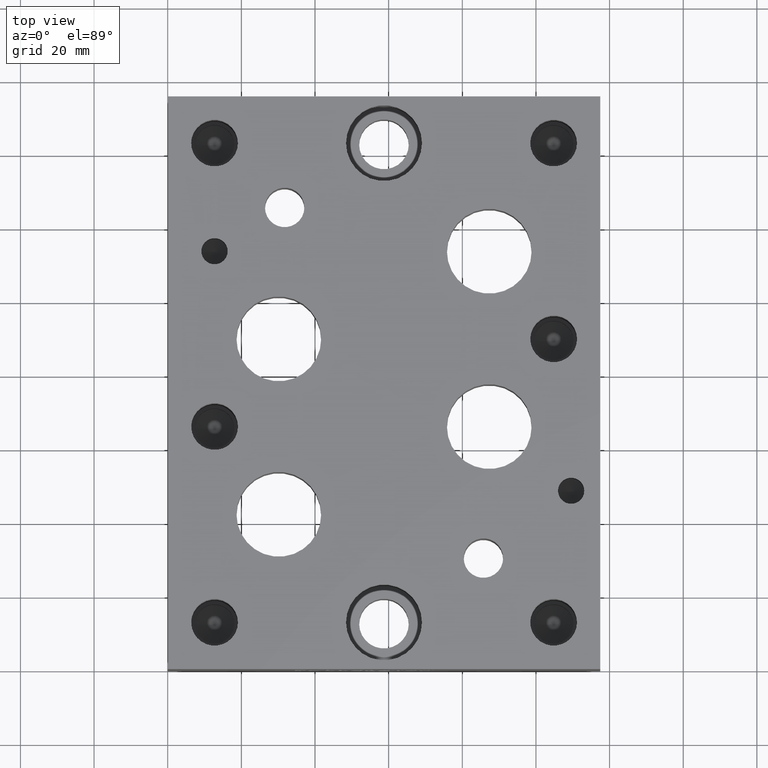
[diagram: clean part render]
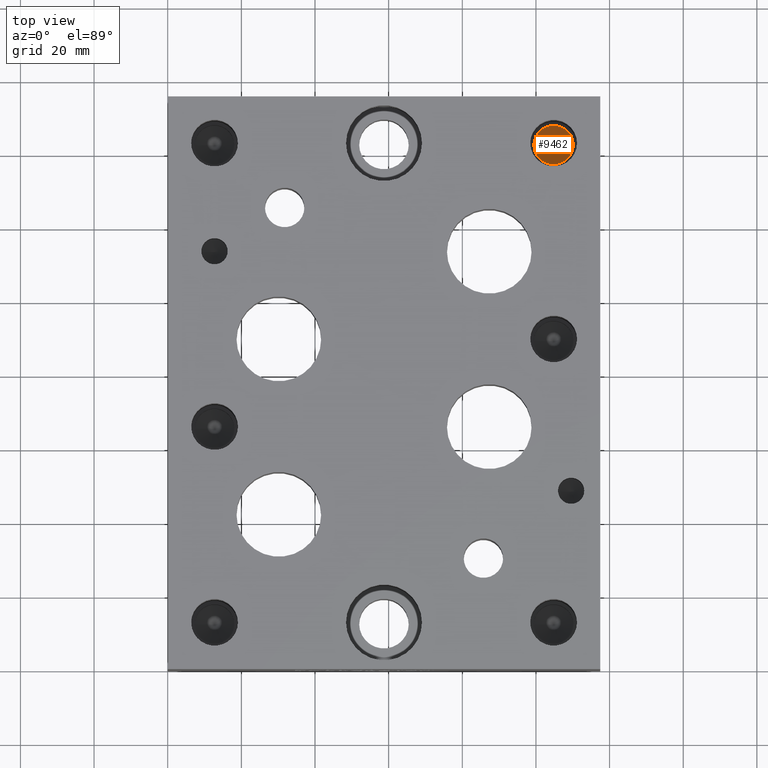
[diagram: same view with one face highlighted and labeled with its STEP entity id]
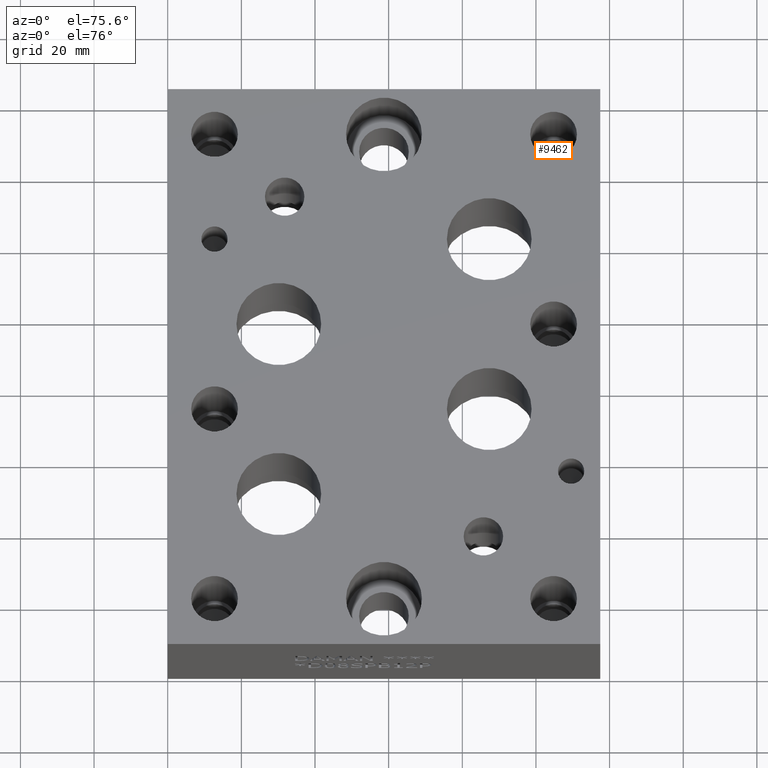
[diagram: same view with one face highlighted and labeled with its STEP entity id]
A machine part, top view. The second image highlights one B-rep face of the part: STEP entity #9462.
A second angle (auxiliary view) of the same face is appended — the face is thin or edge-on in the first view.
In plain terms, the highlighted conical surface has half-angle 60 deg.
Its self-contained STEP definition (entity closure, byte-faithful):
#19=CONICAL_SURFACE('',#9910,2.6797,1.0471975511966);
#135=CIRCLE('',#9911,5.3594);
#136=CIRCLE('',#9912,5.3594);
#1007=FACE_OUTER_BOUND('',#1544,.T.);
#1544=EDGE_LOOP('',(#8361,#8362,#8363,#8364));
#2503=LINE('',#16027,#3439);
#3439=VECTOR('',#11709,2.6797);
#4561=VERTEX_POINT('',#16023);
#4562=VERTEX_POINT('',#16024);
#4563=VERTEX_POINT('',#16026);
#5846=EDGE_CURVE('',#4561,#4562,#135,.T.);
#5847=EDGE_CURVE('',#4562,#4563,#2503,.T.);
#5848=EDGE_CURVE('',#4562,#4561,#136,.T.);
#8361=ORIENTED_EDGE('',*,*,#5846,.T.);
#8362=ORIENTED_EDGE('',*,*,#5847,.T.);
#8363=ORIENTED_EDGE('',*,*,#5847,.F.);
#8364=ORIENTED_EDGE('',*,*,#5848,.T.);
#9462=ADVANCED_FACE('',(#1007),#19,.F.);
#9910=AXIS2_PLACEMENT_3D('',#16022,#11705,#11706);
#9911=AXIS2_PLACEMENT_3D('',#16025,#11707,#11708);
#9912=AXIS2_PLACEMENT_3D('',#16028,#11710,#11711);
#11705=DIRECTION('center_axis',(0.,0.,1.));
#11706=DIRECTION('ref_axis',(1.,0.,0.));
#11707=DIRECTION('center_axis',(0.,0.,1.));
#11708=DIRECTION('ref_axis',(1.,0.,0.));
#11709=DIRECTION('',(0.866025403784439,1.06057523872491E-16,-0.5));
#11710=DIRECTION('center_axis',(0.,0.,1.));
#11711=DIRECTION('ref_axis',(1.,0.,0.));
#16022=CARTESIAN_POINT('Origin',(104.7877,142.88008,4.54887448365256));
#16023=CARTESIAN_POINT('',(110.1471,142.88008,6.096));
#16024=CARTESIAN_POINT('',(99.4283,142.88008,6.096));
#16025=CARTESIAN_POINT('Origin',(104.7877,142.88008,6.096));
#16026=CARTESIAN_POINT('',(104.7877,142.88008,3.00174896730512));
#16027=CARTESIAN_POINT('',(102.108,142.88008,4.54887448365256));
#16028=CARTESIAN_POINT('Origin',(104.7877,142.88008,6.096));